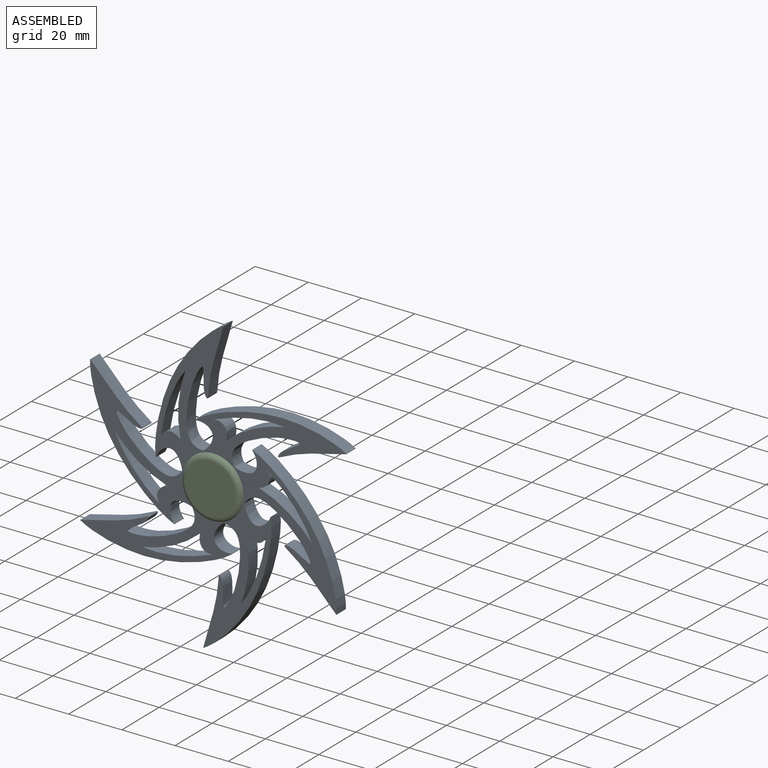
[diagram: assembled view]
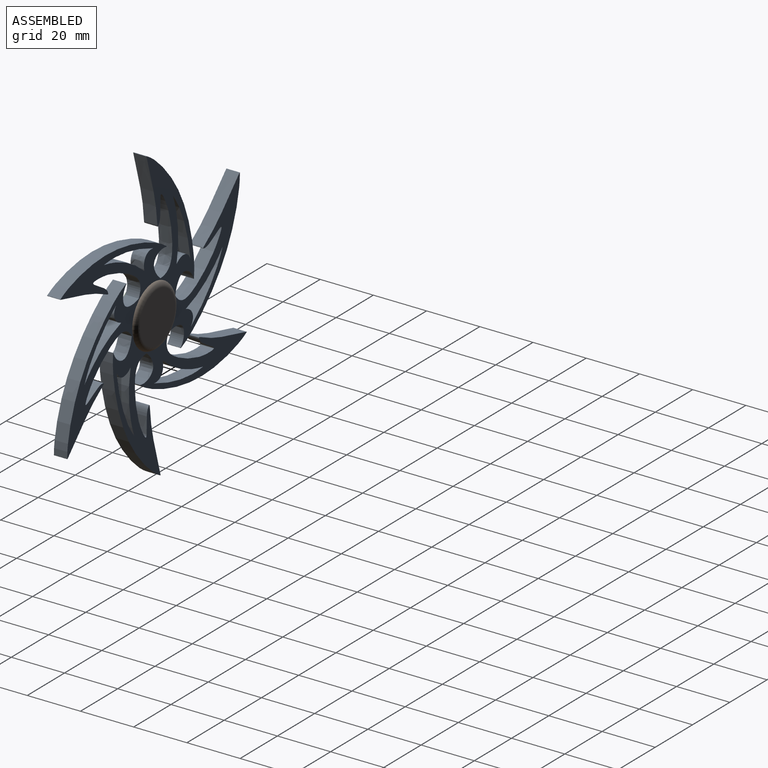
[diagram: assembled view, second angle]
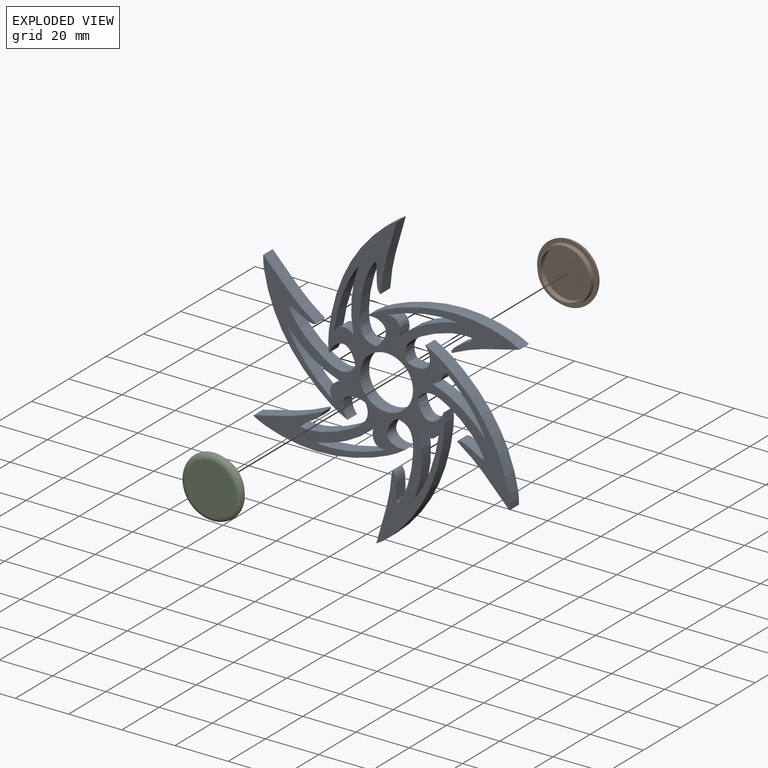
[diagram: exploded view]
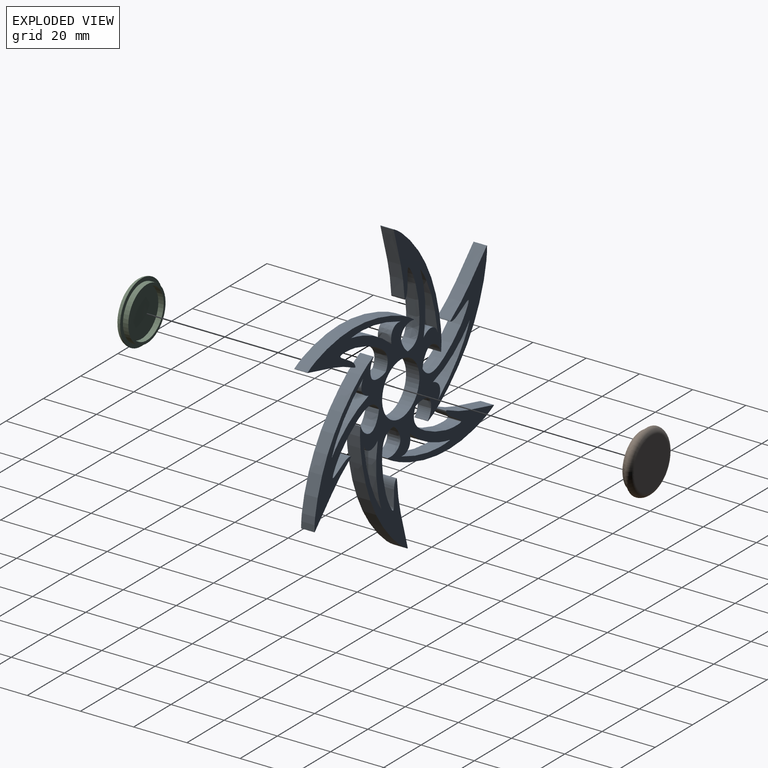
[diagram: exploded view, second angle]
ASSEMBLY  parts=3 mates=2
PART A: 69 faces, bbox 100.3x5x111.4 mm
  f0: plane 111.39x100.29mm, normal (0,-1,0), area 2452.8mm2, adj f2,f3,f4,f5,f6,f7,f8,f9
  f1: plane 111.39x100.29mm, normal (0,1,0), area 2452.8mm2, adj f2,f3,f4,f5,f6,f7,f8,f9
  f2: extruded ~9.63x6.73mm, area 78.2mm2, adj f0,f1,f9,f58
  f3: extruded ~17.31x14.38mm, area 125.9mm2, adj f0,f1,f4,f13
  f4: extruded ~8.07x7.07mm, area 94.7mm2, adj f0,f1,f3,f7
  f5: extruded ~25.51x7.83mm, area 133.8mm2, adj f0,f1,f7,f8
  f6: extruded ~56.96x9.35mm, area 298.2mm2, adj f0,f1,f8,f9
  f7: cylinder r=0.1mm len=5mm, axis (0,1,0), area 0.8mm2, adj f0,f1,f4,f5
  f8: cylinder r=0.1mm len=5mm, axis (0,1,0), area 1.1mm2, adj f0,f1,f5,f6
  f9: cylinder r=0.1mm len=5mm, axis (0,1,0), area 1.3mm2, adj f0,f1,f2,f6
  f10: extruded ~26.46x5mm, area 135.6mm2, adj f0,f1,f11,f12
  f11: extruded ~5.98x5.01mm, area 46.6mm2, adj f0,f1,f10,f12
  f12: extruded ~21.68x10.32mm, area 121.7mm2, adj f0,f1,f10,f11
  f13: extruded ~8.37x8.29mm, area 78.2mm2, adj f0,f1,f3,f20
  f14: extruded ~20.64x10.11mm, area 125.9mm2, adj f0,f1,f15,f24
  f15: extruded ~9.83x6.99mm, area 94.7mm2, adj f0,f1,f14,f18
  f16: extruded ~19.53x18.18mm, area 133.8mm2, adj f0,f1,f18,f19
  f17: extruded ~47.5x31.64mm, area 298.2mm2, adj f0,f1,f19,f20
  f18: cylinder r=0.1mm len=5mm, axis (0,1,0), area 0.8mm2, adj f0,f1,f15,f16
  f19: cylinder r=0.1mm len=5mm, axis (0,1,0), area 1.1mm2, adj f0,f1,f16,f17
  f20: cylinder r=0.1mm len=5mm, axis (0,1,0), area 1.3mm2, adj f0,f1,f13,f17
  f21: extruded ~20.71x17.05mm, area 135.6mm2, adj f0,f1,f22,f23
  f22: extruded ~7.1x5mm, area 46.6mm2, adj f0,f1,f21,f23
  f23: extruded ~19.78x13.62mm, area 121.7mm2, adj f0,f1,f21,f22
  f24: extruded ~9.81x6.32mm, area 78.2mm2, adj f0,f1,f14,f31
  f25: extruded ~21.37x6.33mm, area 125.9mm2, adj f0,f1,f26,f35
  f26: extruded ~10.29x5.64mm, area 94.7mm2, adj f0,f1,f25,f29
  f27: extruded ~26x5.98mm, area 133.8mm2, adj f0,f1,f29,f30
  f28: extruded ~51.16x25.5mm, area 298.2mm2, adj f0,f1,f30,f31
  f29: cylinder r=0.1mm len=5mm, axis (0,1,0), area 0.8mm2, adj f0,f1,f26,f27
  f30: cylinder r=0.1mm len=5mm, axis (0,1,0), area 1.1mm2, adj f0,f1,f27,f28
  f31: cylinder r=0.1mm len=5mm, axis (0,1,0), area 1.3mm2, adj f0,f1,f24,f28
  f32: extruded ~25.12x9.41mm, area 135.6mm2, adj f0,f1,f33,f34
  f33: extruded ~7.51x5mm, area 46.6mm2, adj f0,f1,f32,f34
  f34: extruded ~23.94x5mm, area 121.7mm2, adj f0,f1,f32,f33
  f35: extruded ~9.63x6.73mm, area 78.2mm2, adj f0,f1,f25,f42
  f36: extruded ~17.31x14.38mm, area 125.9mm2, adj f0,f1,f37,f46
  f37: extruded ~8.07x7.07mm, area 94.7mm2, adj f0,f1,f36,f40
  f38: extruded ~25.51x7.83mm, area 133.8mm2, adj f0,f1,f40,f41
  f39: extruded ~56.96x9.35mm, area 298.2mm2, adj f0,f1,f41,f42
  f40: cylinder r=0.1mm len=5mm, axis (0,1,0), area 0.8mm2, adj f0,f1,f37,f38
  f41: cylinder r=0.1mm len=5mm, axis (0,1,0), area 1.1mm2, adj f0,f1,f38,f39
  f42: cylinder r=0.1mm len=5mm, axis (0,1,0), area 1.3mm2, adj f0,f1,f35,f39
  f43: extruded ~26.46x5mm, area 135.6mm2, adj f0,f1,f44,f45
  f44: extruded ~5.98x5.01mm, area 46.6mm2, adj f0,f1,f43,f45
  f45: extruded ~21.68x10.32mm, area 121.7mm2, adj f0,f1,f43,f44
  f46: extruded ~8.37x8.29mm, area 78.2mm2, adj f0,f1,f36,f53
  f47: extruded ~20.64x10.11mm, area 125.9mm2, adj f0,f1,f48,f57
  f48: extruded ~9.83x6.99mm, area 94.7mm2, adj f0,f1,f47,f51
  f49: extruded ~19.53x18.18mm, area 133.8mm2, adj f0,f1,f51,f52
  f50: extruded ~47.5x31.64mm, area 298.2mm2, adj f0,f1,f52,f53
  f51: cylinder r=0.1mm len=5mm, axis (0,1,0), area 0.8mm2, adj f0,f1,f48,f49
  f52: cylinder r=0.1mm len=5mm, axis (0,1,0), area 1.1mm2, adj f0,f1,f49,f50
  f53: cylinder r=0.1mm len=5mm, axis (0,1,0), area 1.3mm2, adj f0,f1,f46,f50
  f54: extruded ~20.71x17.05mm, area 135.6mm2, adj f0,f1,f55,f56
  f55: extruded ~7.1x5mm, area 46.6mm2, adj f0,f1,f54,f56
  f56: extruded ~19.78x13.62mm, area 121.7mm2, adj f0,f1,f54,f55
  f57: extruded ~9.81x6.32mm, area 78.2mm2, adj f0,f1,f47,f64
  f58: extruded ~21.37x6.33mm, area 125.9mm2, adj f0,f1,f2,f59
  f59: extruded ~10.29x5.64mm, area 94.7mm2, adj f0,f1,f58,f62
  f60: extruded ~26x5.98mm, area 133.8mm2, adj f0,f1,f62,f63
  f61: extruded ~51.16x25.5mm, area 298.2mm2, adj f0,f1,f63,f64
  f62: cylinder r=0.1mm len=5mm, axis (0,1,0), area 0.8mm2, adj f0,f1,f59,f60
  f63: cylinder r=0.1mm len=5mm, axis (0,1,0), area 1.1mm2, adj f0,f1,f60,f61
  f64: cylinder r=0.1mm len=5mm, axis (0,1,0), area 1.3mm2, adj f0,f1,f57,f61
  f65: extruded ~25.12x9.41mm, area 135.6mm2, adj f0,f1,f66,f67
  f66: extruded ~7.51x5mm, area 46.6mm2, adj f0,f1,f65,f67
  f67: extruded ~23.94x5mm, area 121.7mm2, adj f0,f1,f65,f66
  f68: cylinder r=10mm len=20mm, axis (0,-1,0), area 314.2mm2, adj f0,f1
PART B: 7 faces, bbox 24.9x4x24.9 mm
  f0: plane 23x23mm, normal (0,-1,0), area 101.3mm2, adj f3,f6
  f1: plane 19x19mm, normal (0,1,0), area 283.5mm2, adj f6
  f2: cylinder r=9mm len=18mm, axis (0,1,0), area 113.1mm2, adj f4,f5
  f3: cylinder r=10mm len=20mm, axis (0,1,0), area 125.7mm2, adj f0,f4
  f4: plane 20x20mm, normal (0,-1,0), area 59.7mm2, adj f2,f3
  f5: plane 18x18mm, normal (0,-1,0), area 254.5mm2, adj f2
  f6: torus R=9.5mm, axis (0,-1,0), area 212.7mm2, adj f0,f1
PART C: same geometry as B
PLACE A t=(96.93,64.4,1.2)mm
PLACE B t=(152.8,65.9,60.01)mm
PLACE C rot(axis=(1,0,0),180deg) t=(152.8,57.9,60.01)mm
MATE fastened B.f3 <-> A.f68  axis (0,-1,0) through (152.8,61.9,60.01)mm
MATE fastened C.f3 <-> A.f68  axis (0,1,0) through (152.8,61.9,60.01)mm
